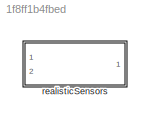
MODEL slx_1f8ff1b4fbed
KIND library
CONFIG AbsTol = auto
CONFIG EnableMultiTasking = off
CONFIG FixedStep = auto
CONFIG MaxStep = auto
CONFIG MinStep = auto
CONFIG RelTol = 1e-3
CONFIG SampleTimeConstraint = Unconstrained
CONFIG Solver = VariableStepAuto
CONFIG SolverName = VariableStepAuto
CONFIG StartTime = 0.0
CONFIG StopTime = 10.0
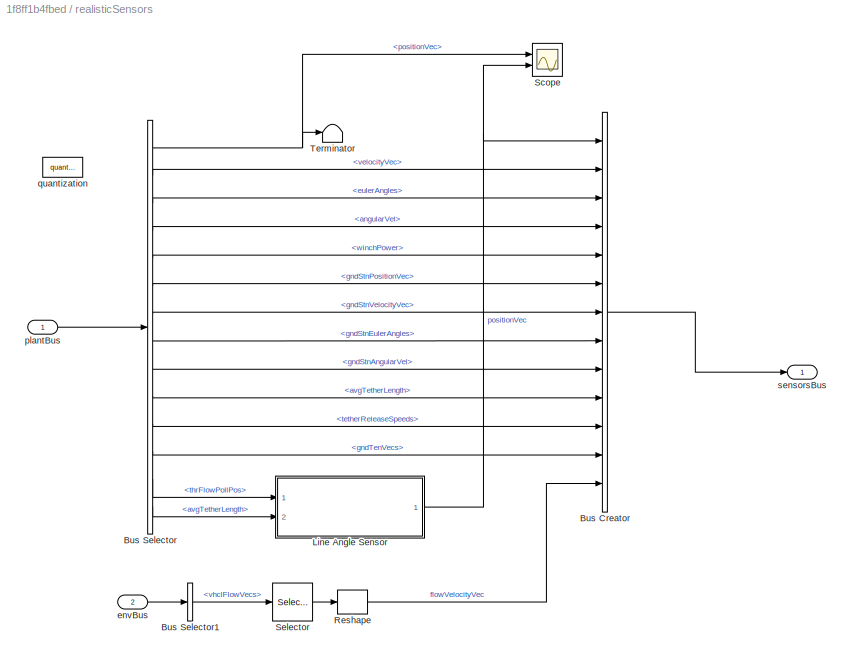
BLOCK [SubSystem] realisticSensors
  InitFcn = initializeBussesFromBlock(gcb)
  LoadFcn = initializeBussesFromBlock(gcb)
  Ports = [2, 1]
  RequestExecContextInheritance = off
  StartFcn = initializeBussesFromBlock(gcb)
BLOCK [BusCreator] realisticSensors/Bus Creator
  DisplayOption = bar
  InheritFromInputs = off
  Inputs = 13
  NonVirtualBus = on
  OutDataTypeStr = Bus: sensorsBus
  Ports = [13, 1]
BLOCK [BusSelector] realisticSensors/Bus Selector
  OutputSignals = positionVec,velocityVec,eulerAngles,angularVel,winchPower,gndStnPositionVec,gndStnVelocityVec,gndStnEulerAngles,gndStnAngularVel,avgTetherLength,tetherReleaseSpeeds,gndTenVecs,thrFlowPollPos,avgTetherLength
  Ports = [1, 14]
BLOCK [BusSelector] realisticSensors/Bus Selector1
  OutputSignals = vhclFlowVecs
  Ports = [1, 1]
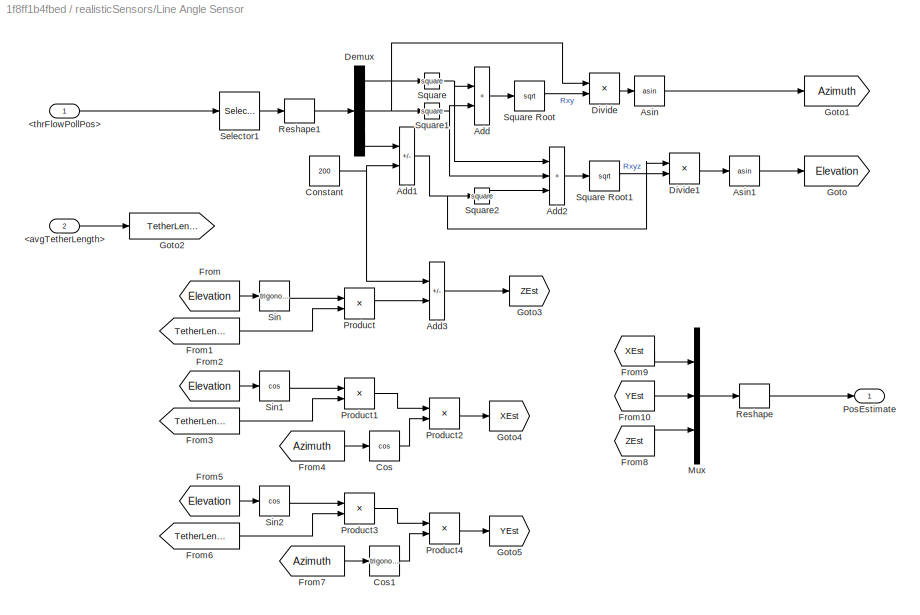
BLOCK [SubSystem] realisticSensors/Line Angle Sensor 
  Ports = [2, 1]
  RequestExecContextInheritance = off
BLOCK [Inport] realisticSensors/Line Angle Sensor /<avgTetherLength>
  Port = 2
BLOCK [Inport] realisticSensors/Line Angle Sensor /<thrFlowPollPos>
BLOCK [Sum] realisticSensors/Line Angle Sensor /Add
  IconShape = rectangular
  Ports = [2, 1]
BLOCK [Sum] realisticSensors/Line Angle Sensor /Add1
  IconShape = rectangular
  Inputs = -+
  Ports = [2, 1]
BLOCK [Sum] realisticSensors/Line Angle Sensor /Add2
  IconShape = rectangular
  Inputs = +++
  Ports = [3, 1]
BLOCK [Sum] realisticSensors/Line Angle Sensor /Add3
  IconShape = rectangular
  Inputs = +-
  Ports = [2, 1]
BLOCK [Trigonometry] realisticSensors/Line Angle Sensor /Asin
  Operator = asin
  Ports = [1, 1]
BLOCK [Trigonometry] realisticSensors/Line Angle Sensor /Asin1
  Operator = asin
  Ports = [1, 1]
BLOCK [Constant] realisticSensors/Line Angle Sensor /Constant
  Value = 200
BLOCK [Trigonometry] realisticSensors/Line Angle Sensor /Cos
  Operator = cos
  Ports = [1, 1]
BLOCK [Trigonometry] realisticSensors/Line Angle Sensor /Cos1
  Ports = [1, 1]
BLOCK [Demux] realisticSensors/Line Angle Sensor /Demux
  Outputs = 3
  Ports = [1, 3]
BLOCK [Product] realisticSensors/Line Angle Sensor /Divide
  Inputs = */
  Ports = [2, 1]
BLOCK [Product] realisticSensors/Line Angle Sensor /Divide1
  Inputs = */
  Ports = [2, 1]
BLOCK [From] realisticSensors/Line Angle Sensor /From
  GotoTag = Elevation
BLOCK [From] realisticSensors/Line Angle Sensor /From1
  GotoTag = TetherLength
BLOCK [From] realisticSensors/Line Angle Sensor /From10
  GotoTag = YEst
BLOCK [From] realisticSensors/Line Angle Sensor /From2
  GotoTag = Elevation
BLOCK [From] realisticSensors/Line Angle Sensor /From3
  GotoTag = TetherLength
BLOCK [From] realisticSensors/Line Angle Sensor /From4
  GotoTag = Azimuth
BLOCK [From] realisticSensors/Line Angle Sensor /From5
  GotoTag = Elevation
BLOCK [From] realisticSensors/Line Angle Sensor /From6
  GotoTag = TetherLength
BLOCK [From] realisticSensors/Line Angle Sensor /From7
  GotoTag = Azimuth
BLOCK [From] realisticSensors/Line Angle Sensor /From8
  GotoTag = ZEst
BLOCK [From] realisticSensors/Line Angle Sensor /From9
  GotoTag = XEst
BLOCK [Goto] realisticSensors/Line Angle Sensor /Goto
  GotoTag = Elevation
BLOCK [Goto] realisticSensors/Line Angle Sensor /Goto1
  GotoTag = Azimuth
BLOCK [Goto] realisticSensors/Line Angle Sensor /Goto2
  GotoTag = TetherLength
BLOCK [Goto] realisticSensors/Line Angle Sensor /Goto3
  GotoTag = ZEst
BLOCK [Goto] realisticSensors/Line Angle Sensor /Goto4
  GotoTag = XEst
BLOCK [Goto] realisticSensors/Line Angle Sensor /Goto5
  GotoTag = YEst
BLOCK [Mux] realisticSensors/Line Angle Sensor /Mux
  DisplayOption = bar
  Inputs = 3
  Ports = [3, 1]
BLOCK [Outport] realisticSensors/Line Angle Sensor /PosEstimate
BLOCK [Product] realisticSensors/Line Angle Sensor /Product
  Ports = [2, 1]
BLOCK [Product] realisticSensors/Line Angle Sensor /Product1
  Ports = [2, 1]
BLOCK [Product] realisticSensors/Line Angle Sensor /Product2
  Ports = [2, 1]
BLOCK [Product] realisticSensors/Line Angle Sensor /Product3
  Ports = [2, 1]
BLOCK [Product] realisticSensors/Line Angle Sensor /Product4
  Ports = [2, 1]
BLOCK [Reshape] realisticSensors/Line Angle Sensor /Reshape
  OutputDimensionality = Column vector (2-D)
  Ports = [1, 1]
BLOCK [Reshape] realisticSensors/Line Angle Sensor /Reshape1
  OutputDimensionality = Column vector (2-D)
  Ports = [1, 1]
BLOCK [Selector] realisticSensors/Line Angle Sensor /Selector1
  IndexOptions = Select all,Index vector (dialog)
  Indices = [1 3],1
  InputPortWidth = 3
  NumberOfDimensions = 2
  OutputSizes = 1,1
  Ports = [1, 1]
BLOCK [Trigonometry] realisticSensors/Line Angle Sensor /Sin
  Ports = [1, 1]
BLOCK [Trigonometry] realisticSensors/Line Angle Sensor /Sin1
  Operator = cos
  Ports = [1, 1]
BLOCK [Trigonometry] realisticSensors/Line Angle Sensor /Sin2
  Operator = cos
  Ports = [1, 1]
BLOCK [Math] realisticSensors/Line Angle Sensor /Square
  Operator = square
  Ports = [1, 1]
BLOCK [Sqrt] realisticSensors/Line Angle Sensor /Square Root
BLOCK [Sqrt] realisticSensors/Line Angle Sensor /Square Root1
BLOCK [Math] realisticSensors/Line Angle Sensor /Square1
  Operator = square
  Ports = [1, 1]
BLOCK [Math] realisticSensors/Line Angle Sensor /Square2
  Operator = square
  Ports = [1, 1]
BLOCK [Reshape] realisticSensors/Reshape
  OutputDimensionality = Column vector (2-D)
  Ports = [1, 1]
BLOCK [Scope] realisticSensors/Scope
  Floating = off
  NumInputPorts = 2
  Ports = [2]
  ScopeSpecificationString = Simulink.scopes.TimeScopeBlockCfg('CurrentConfiguration', extmgr.ConfigurationSet(extmgr.Configuration('Core','General UI',true),extmgr.Configuration('Core','Source UI',true),extmgr.Configuration('Sources','WiredSimulink',true),extmgr.Configuration('Visuals','Time Domain',true),extmgr.Configuration('Tools','Plot Navigation',true),extmgr.Configuration('Tools','Measurements',true,'Version','2020a'))...<+50ch>
BLOCK [Selector] realisticSensors/Selector
  IndexOptions = Select all,Index vector (dialog)
  Indices = [1 3],1
  InputPortWidth = 3
  NumberOfDimensions = 2
  OutputSizes = 1,1
  Ports = [1, 1]
BLOCK [Terminator] realisticSensors/Terminator
BLOCK [Inport] realisticSensors/envBus
  OutDataTypeStr = Bus: envBus
  Port = 2
BLOCK [Inport] realisticSensors/plantBus
  OutDataTypeStr = Bus: plantBus
BLOCK [Reference] realisticSensors/quantization  REF=quantization/quantization  (lib defined in slx_2ff1dfd2aab0, slx_da19e90fab02)
  Commented = on
  Ports = [1, 1]
  SourceBlock = quantization/quantization
BLOCK [Outport] realisticSensors/sensorsBus
  OutDataTypeStr = Bus: sensorsBus
  VectorParamsAs1DForOutWhenUnconnected = off
LINE realisticSensors/Bus Creator:1 -> realisticSensors/sensorsBus:1
LINE realisticSensors/Bus Selector1:1 -> realisticSensors/Selector:1
NET realisticSensors/Bus Selector:1 -> realisticSensors/Scope:1, realisticSensors/Terminator:1
LINE realisticSensors/Bus Selector:10 -> realisticSensors/Bus Creator:10
LINE realisticSensors/Bus Selector:11 -> realisticSensors/Bus Creator:11
LINE realisticSensors/Bus Selector:12 -> realisticSensors/Bus Creator:12
LINE realisticSensors/Bus Selector:13 -> realisticSensors/Line Angle Sensor :1
LINE realisticSensors/Bus Selector:14 -> realisticSensors/Line Angle Sensor :2
LINE realisticSensors/Bus Selector:2 -> realisticSensors/Bus Creator:2
LINE realisticSensors/Bus Selector:3 -> realisticSensors/Bus Creator:3
LINE realisticSensors/Bus Selector:4 -> realisticSensors/Bus Creator:4
LINE realisticSensors/Bus Selector:5 -> realisticSensors/Bus Creator:5
LINE realisticSensors/Bus Selector:6 -> realisticSensors/Bus Creator:6
LINE realisticSensors/Bus Selector:7 -> realisticSensors/Bus Creator:7
LINE realisticSensors/Bus Selector:8 -> realisticSensors/Bus Creator:8
LINE realisticSensors/Bus Selector:9 -> realisticSensors/Bus Creator:9
LINE realisticSensors/Line Angle Sensor /<avgTetherLength>:1 -> realisticSensors/Line Angle Sensor /Goto2:1
LINE realisticSensors/Line Angle Sensor /<thrFlowPollPos>:1 -> realisticSensors/Line Angle Sensor /Selector1:1
NET realisticSensors/Line Angle Sensor /Add1:1 -> realisticSensors/Line Angle Sensor /Divide1:1, realisticSensors/Line Angle Sensor /Square2:1
LINE realisticSensors/Line Angle Sensor /Add2:1 -> realisticSensors/Line Angle Sensor /Square Root1:1
LINE realisticSensors/Line Angle Sensor /Add3:1 -> realisticSensors/Line Angle Sensor /Goto3:1
LINE realisticSensors/Line Angle Sensor /Add:1 -> realisticSensors/Line Angle Sensor /Square Root:1
LINE realisticSensors/Line Angle Sensor /Asin1:1 -> realisticSensors/Line Angle Sensor /Goto:1
LINE realisticSensors/Line Angle Sensor /Asin:1 -> realisticSensors/Line Angle Sensor /Goto1:1
NET realisticSensors/Line Angle Sensor /Constant:1 -> realisticSensors/Line Angle Sensor /Add1:2, realisticSensors/Line Angle Sensor /Add3:1
LINE realisticSensors/Line Angle Sensor /Cos1:1 -> realisticSensors/Line Angle Sensor /Product4:2
LINE realisticSensors/Line Angle Sensor /Cos:1 -> realisticSensors/Line Angle Sensor /Product2:2
LINE realisticSensors/Line Angle Sensor /Demux:1 -> realisticSensors/Line Angle Sensor /Square:1
NET realisticSensors/Line Angle Sensor /Demux:2 -> realisticSensors/Line Angle Sensor /Divide:1, realisticSensors/Line Angle Sensor /Square1:1
LINE realisticSensors/Line Angle Sensor /Demux:3 -> realisticSensors/Line Angle Sensor /Add1:1
LINE realisticSensors/Line Angle Sensor /Divide1:1 -> realisticSensors/Line Angle Sensor /Asin1:1
LINE realisticSensors/Line Angle Sensor /Divide:1 -> realisticSensors/Line Angle Sensor /Asin:1
LINE realisticSensors/Line Angle Sensor /From10:1 -> realisticSensors/Line Angle Sensor /Mux:2
LINE realisticSensors/Line Angle Sensor /From1:1 -> realisticSensors/Line Angle Sensor /Product:2
LINE realisticSensors/Line Angle Sensor /From2:1 -> realisticSensors/Line Angle Sensor /Sin1:1
LINE realisticSensors/Line Angle Sensor /From3:1 -> realisticSensors/Line Angle Sensor /Product1:2
LINE realisticSensors/Line Angle Sensor /From4:1 -> realisticSensors/Line Angle Sensor /Cos:1
LINE realisticSensors/Line Angle Sensor /From5:1 -> realisticSensors/Line Angle Sensor /Sin2:1
LINE realisticSensors/Line Angle Sensor /From6:1 -> realisticSensors/Line Angle Sensor /Product3:2
LINE realisticSensors/Line Angle Sensor /From7:1 -> realisticSensors/Line Angle Sensor /Cos1:1
LINE realisticSensors/Line Angle Sensor /From8:1 -> realisticSensors/Line Angle Sensor /Mux:3
LINE realisticSensors/Line Angle Sensor /From9:1 -> realisticSensors/Line Angle Sensor /Mux:1
LINE realisticSensors/Line Angle Sensor /From:1 -> realisticSensors/Line Angle Sensor /Sin:1
LINE realisticSensors/Line Angle Sensor /Mux:1 -> realisticSensors/Line Angle Sensor /Reshape:1
LINE realisticSensors/Line Angle Sensor /Product1:1 -> realisticSensors/Line Angle Sensor /Product2:1
LINE realisticSensors/Line Angle Sensor /Product2:1 -> realisticSensors/Line Angle Sensor /Goto4:1
LINE realisticSensors/Line Angle Sensor /Product3:1 -> realisticSensors/Line Angle Sensor /Product4:1
LINE realisticSensors/Line Angle Sensor /Product4:1 -> realisticSensors/Line Angle Sensor /Goto5:1
LINE realisticSensors/Line Angle Sensor /Product:1 -> realisticSensors/Line Angle Sensor /Add3:2
LINE realisticSensors/Line Angle Sensor /Reshape1:1 -> realisticSensors/Line Angle Sensor /Demux:1
LINE realisticSensors/Line Angle Sensor /Reshape:1 -> realisticSensors/Line Angle Sensor /PosEstimate:1
LINE realisticSensors/Line Angle Sensor /Selector1:1 -> realisticSensors/Line Angle Sensor /Reshape1:1
LINE realisticSensors/Line Angle Sensor /Sin1:1 -> realisticSensors/Line Angle Sensor /Product1:1
LINE realisticSensors/Line Angle Sensor /Sin2:1 -> realisticSensors/Line Angle Sensor /Product3:1
LINE realisticSensors/Line Angle Sensor /Sin:1 -> realisticSensors/Line Angle Sensor /Product:1
LINE realisticSensors/Line Angle Sensor /Square Root1:1 -> realisticSensors/Line Angle Sensor /Divide1:2
LINE realisticSensors/Line Angle Sensor /Square Root:1 -> realisticSensors/Line Angle Sensor /Divide:2
NET realisticSensors/Line Angle Sensor /Square1:1 -> realisticSensors/Line Angle Sensor /Add2:2, realisticSensors/Line Angle Sensor /Add:2
LINE realisticSensors/Line Angle Sensor /Square2:1 -> realisticSensors/Line Angle Sensor /Add2:3
NET realisticSensors/Line Angle Sensor /Square:1 -> realisticSensors/Line Angle Sensor /Add2:1, realisticSensors/Line Angle Sensor /Add:1
NET realisticSensors/Line Angle Sensor :1 -> realisticSensors/Bus Creator:1, realisticSensors/Scope:2
LINE realisticSensors/Reshape:1 -> realisticSensors/Bus Creator:13
LINE realisticSensors/Selector:1 -> realisticSensors/Reshape:1
LINE realisticSensors/envBus:1 -> realisticSensors/Bus Selector1:1
LINE realisticSensors/plantBus:1 -> realisticSensors/Bus Selector:1
note: NET lines group one-source signal fan-out (src -> all destinations, sorted); 1:1 wires keep LINE
